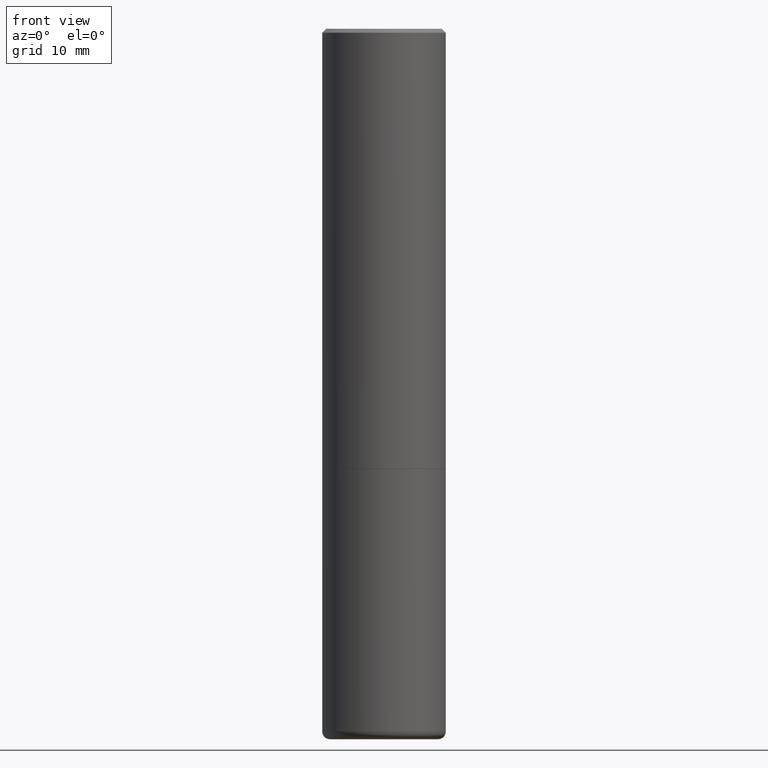
[diagram: clean part render]
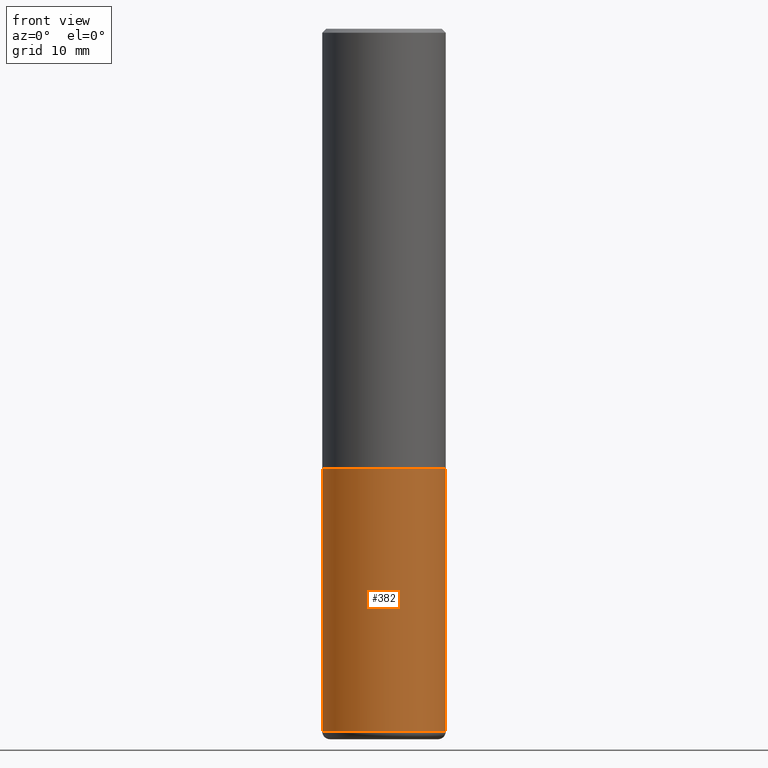
[diagram: same view with one face highlighted and labeled with its STEP entity id]
A machine part, front view. The second image highlights one B-rep face of the part: STEP entity #382.
In plain terms, the highlighted cylindrical surface (partial cylindrical patch) has radius 7.9997 mm, axis along (-0, 0, 1).
Its self-contained STEP definition (entity closure, byte-faithful):
#2 = LINE ( 'NONE', #32, #104 ) ;
#9 = ORIENTED_EDGE ( 'NONE', *, *, #232, .F. ) ;
#20 = DIRECTION ( 'NONE',  ( -2.445468806185136877E-29, 3.491481338843145188E-15, 1.000000000000000000 ) ) ;
#32 = CARTESIAN_POINT ( 'NONE',  ( 0.3149500000000000077, -2.199284095337289871E-15, 1.535751875536930130E-29 ) ) ;
#38 = FACE_OUTER_BOUND ( 'NONE', #221, .T. ) ;
#43 = VECTOR ( 'NONE', #20, 39.37007874015748143 ) ;
#49 = AXIS2_PLACEMENT_3D ( 'NONE', #383, #100, #260 ) ;
#78 = DIRECTION ( 'NONE',  ( 1.000000000000000000, -6.982962677686266711E-15, 4.876176775795936353E-29 ) ) ;
#100 = DIRECTION ( 'NONE',  ( -2.445468806185136597E-29, 3.491481338843145583E-15, 1.000000000000000000 ) ) ;
#104 = VECTOR ( 'NONE', #294, 39.37007874015748143 ) ;
#117 = VERTEX_POINT ( 'NONE', #280 ) ;
#124 = CIRCLE ( 'NONE', #49, 0.3149500000000000077 ) ;
#134 = ORIENTED_EDGE ( 'NONE', *, *, #335, .T. ) ;
#154 = EDGE_CURVE ( 'NONE', #175, #117, #321, .T. ) ;
#155 = CARTESIAN_POINT ( 'NONE',  ( 0.3149500000000000077, -1.003416821970130712E-14, -2.243999999999999773 ) ) ;
#175 = VERTEX_POINT ( 'NONE', #373 ) ;
#205 = AXIS2_PLACEMENT_3D ( 'NONE', #302, #361, #78 ) ;
#208 = VERTEX_POINT ( 'NONE', #292 ) ;
#221 = EDGE_LOOP ( 'NONE', ( #236, #134, #277, #9 ) ) ;
#232 = EDGE_CURVE ( 'NONE', #117, #284, #124, .T. ) ;
#233 = CYLINDRICAL_SURFACE ( 'NONE', #205, 0.3149500000000000077 ) ;
#236 = ORIENTED_EDGE ( 'NONE', *, *, #154, .F. ) ;
#260 = DIRECTION ( 'NONE',  ( 1.000000000000000000, -6.982962677686266711E-15, 0.000000000000000000 ) ) ;
#265 = DIRECTION ( 'NONE',  ( -2.445468806185136597E-29, 3.491481338843145583E-15, 1.000000000000000000 ) ) ;
#275 = EDGE_CURVE ( 'NONE', #208, #284, #2, .T. ) ;
#277 = ORIENTED_EDGE ( 'NONE', *, *, #275, .T. ) ;
#280 = CARTESIAN_POINT ( 'NONE',  ( -0.3149500000000000077, -7.933878238175299817E-15, -2.243999999999999773 ) ) ;
#284 = VERTEX_POINT ( 'NONE', #155 ) ;
#292 = CARTESIAN_POINT ( 'NONE',  ( 0.3149500000000000077, -1.470786513987673949E-14, -3.582599999999999785 ) ) ;
#293 = CARTESIAN_POINT ( 'NONE',  ( 8.761136545038868759E-29, -1.250858104453945120E-14, -3.582599999999999785 ) ) ;
#294 = DIRECTION ( 'NONE',  ( -2.445468806185136877E-29, 3.491481338843145188E-15, 1.000000000000000000 ) ) ;
#302 = CARTESIAN_POINT ( 'NONE',  ( 0.000000000000000000, 0.000000000000000000, 0.000000000000000000 ) ) ;
#306 = AXIS2_PLACEMENT_3D ( 'NONE', #293, #265, #358 ) ;
#321 = LINE ( 'NONE', #346, #43 ) ;
#335 = EDGE_CURVE ( 'NONE', #175, #208, #336, .T. ) ;
#336 = CIRCLE ( 'NONE', #306, 0.3149500000000000077 ) ;
#346 = CARTESIAN_POINT ( 'NONE',  ( -0.3149500000000000077, 2.237854346276435590E-15, -1.549218606675782676E-29 ) ) ;
#358 = DIRECTION ( 'NONE',  ( 1.000000000000000000, -6.982962677686263555E-15, 0.000000000000000000 ) ) ;
#361 = DIRECTION ( 'NONE',  ( -2.445468806185136597E-29, 3.491481338843145583E-15, 1.000000000000000000 ) ) ;
#373 = CARTESIAN_POINT ( 'NONE',  ( -0.3149500000000000077, -1.027072669826301679E-14, -3.582599999999999785 ) ) ;
#382 = ADVANCED_FACE ( 'NONE', ( #38 ), #233, .T. ) ;
#383 = CARTESIAN_POINT ( 'NONE',  ( 5.487632001079445967E-29, -7.834884124364017250E-15, -2.243999999999999773 ) ) ;